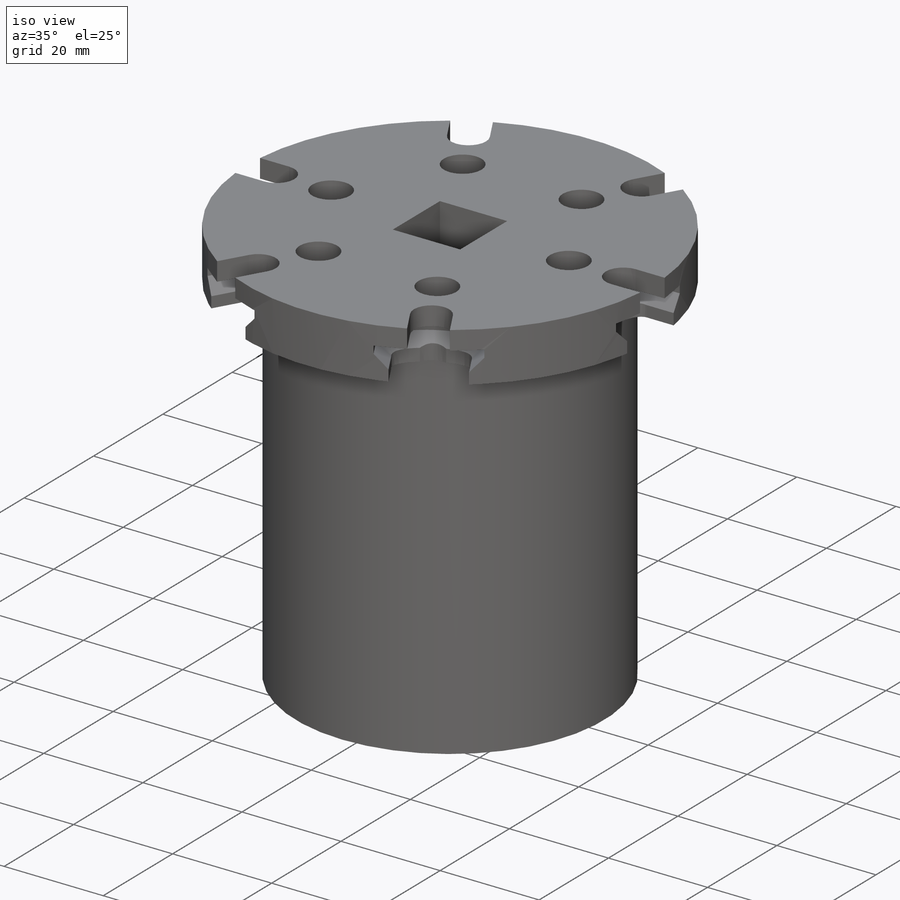
[diagram: iso view]
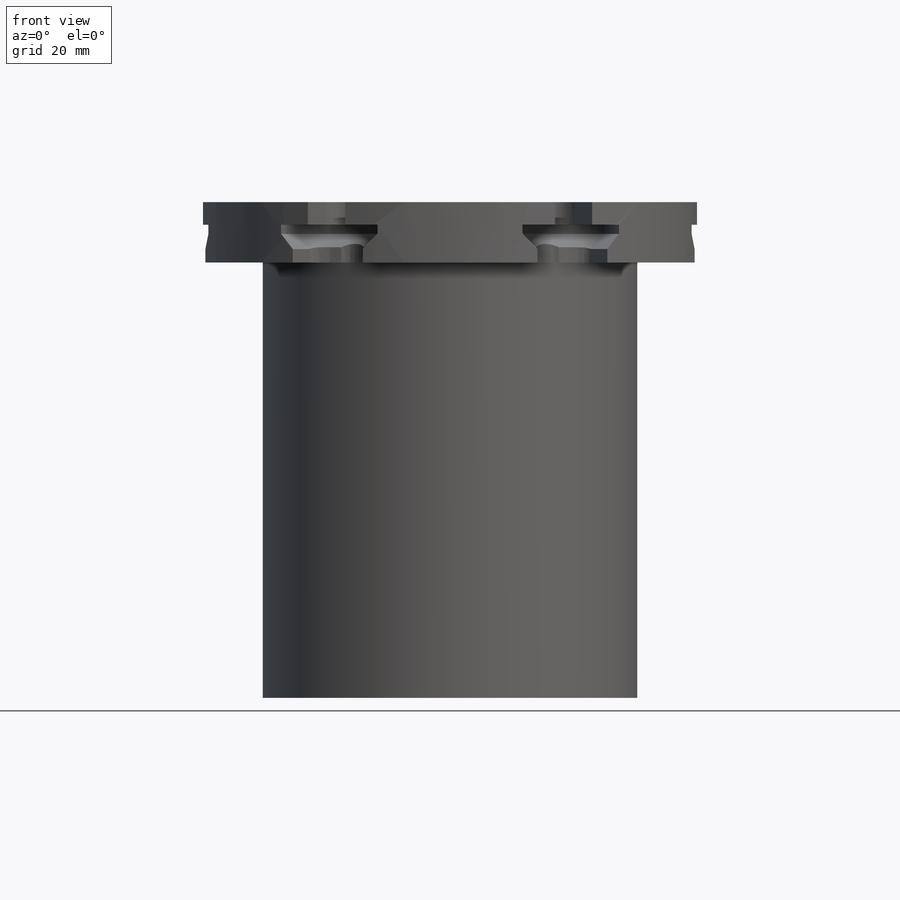
[diagram: front view]
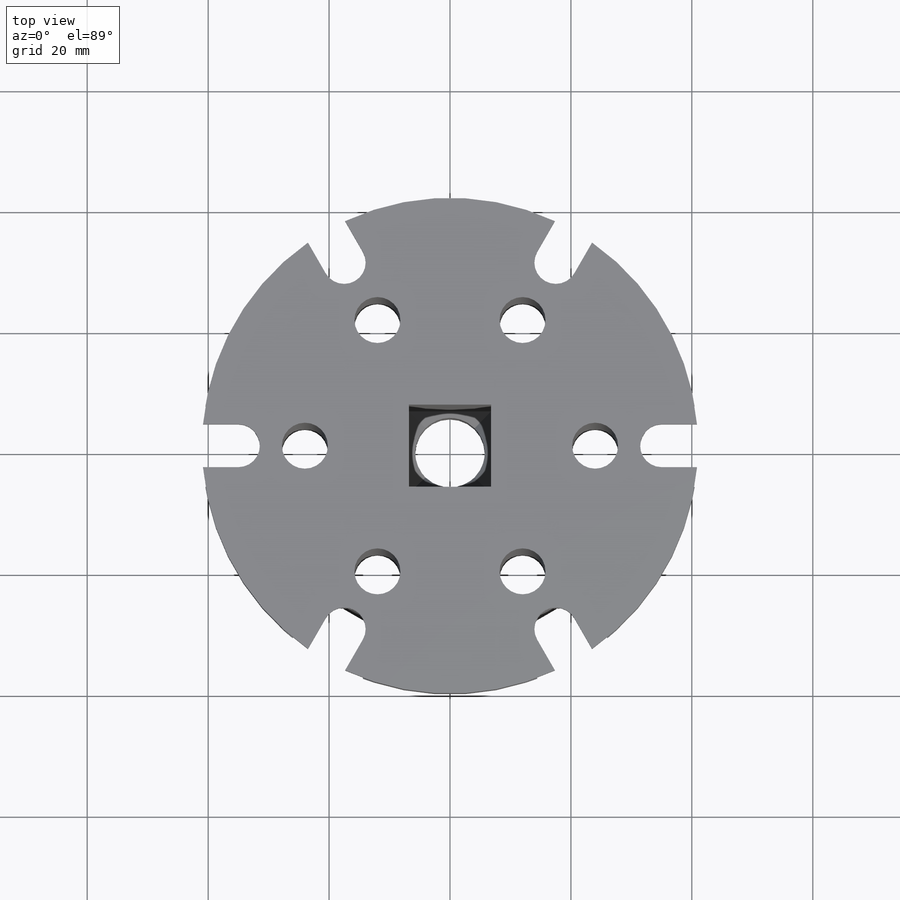
[diagram: top view]
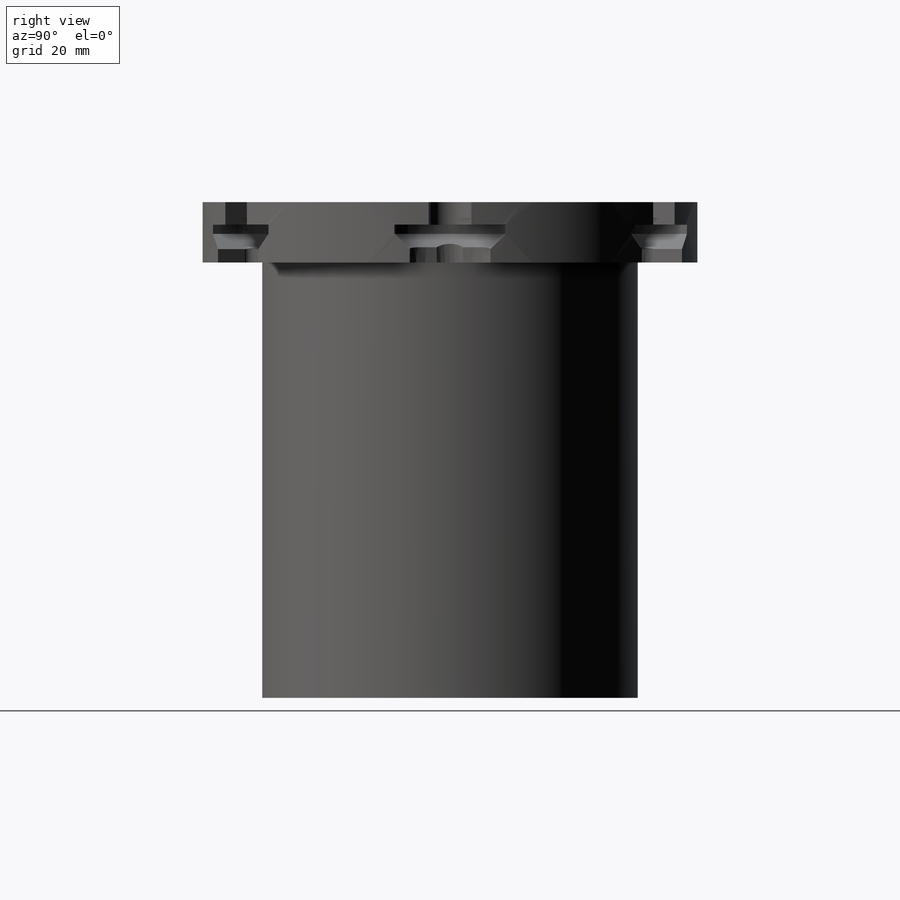
[diagram: right view]
SOLIDWORKS PART (.sldprt)
format: sldprt  version: not decoded by parser v0  size: 976,384 bytes
history: native  units: mm
features: sketch x17, cut_extrude x9, pattern_circular x5, extrude x3, sweep x2, material x1, plane x1, helix x1, chamfer x1, cut_revolve x1, fillet x1 (+12 scaffold rows collapsed)
feature tree (54):
  scaffold x12  (default folders/planes/origin — collapsed)
  material  "Material <not specified>"
  sketch  "Sketch1"  dims[D1=62.12mm D2=11.5mm]
  extrude  "Boss-Extrude1"  Depth=82mm
  sketch  "Sketch2"  dims[D1=82.0mm]
  extrude  "Boss-Extrude2"  Depth=10mm
  sketch  "Sketch3"  dims[D1=7.1mm D2=35.0mm D3=~1.937777mm]
  cut_extrude  "Cut-Extrude1"  Depth=10mm
  pattern_circular  "CirPattern1"  Count=63 Angle=60deg
  sketch  "Sketch5"  dims[c1.D3=82.0mm c1.D1=18.4mm c1.D2=10.4mm c2.D3=36.65mm c2.D4=~20.863192mm c3.D3=~4.965954mm]
  cut_extrude  "Cut-Extrude3"  Depth=1.5mm
  plane  "Plane1"  Offset=41mm
  sketch  "Sketch6"  dims[c1.D1=~3.561305mm c2.D1=~44.586876deg c3.D1=~3.01364mm c4.D1=45.0deg c4.D2=3.0mm c4.D3=3.75mm c5.D2=2.5mm c5.D3=~3.406367mm c6.D2=~2.537799mm]
  sketch  "Sketch7"  dims[D1=2.0mm]
  sweep  "Cut-Sweep9"
  sketch  "Sketch8"  dims[D1=0.0mm D2=0.0mm]
  cut_extrude  "Cut-Extrude4"  Depth=5mm
  pattern_circular  "CirPattern5"  Count=6 Angle=360deg
  sketch  "Sketch16"  dims[D3=7.1mm D1=0.0mm D2=0.0mm]
  cut_extrude  "Cut-Extrude10"  Depth=39mm
  pattern_circular  "CirPattern7"  Count=6 Angle=360deg
  sketch  "Sketch26"  dims[c1.D1=~54.284397mm c1.D3=~54.284397mm c2.D1=~14.306601mm c2.D2=~14.351957mm c3.D1=17.5mm c3.D2=17.5mm c3.D3=2.4mm]
  cut_extrude  "Cut-Extrude14"  Depth=70mm
  sketch  "Sketch27"  dims[c1.D1=~12.692397mm c1.D2=~11.20761mm c2.D1=13.6mm c2.D2=13.6mm]
  cut_extrude  "Cut-Extrude15"  Depth=70mm
  sketch  "Sketch18"  dims[c1.D1=~56.930665mm c1.D2=15.0mm c2.D1=2.4mm c2.D2=2.5mm]
  cut_extrude  "Cut-Extrude12"  Depth=13mm
  sketch  "Sketch19"
  helix  "Helix/Spiral1"  Pitch=12mm
  chamfer  "Chamfer2"  Distance=2.8mm Angle=50deg
  sketch  "Sketch20"  dims[c1.D1=1.0mm c1.D2=1.0mm c2.D2=~111.337071deg c3.D2=~1.797078mm c4.D2=60.0deg c4.D3=~0.972638mm c5.D3=120.0deg c6.D3=~0.878422mm c7.D3=30.0deg c7.D2=~0.874433mm c8.D2=29.0deg c8.D3=1.0mm]
  sweep  "Sweep2"
  pattern_circular  "CirPattern8"  Count=4 Angle=360deg
  sketch  "Sketch24"  dims[c1.D1=~6.222135mm c2.D1=45.0deg c2.D2=~10.757958mm]
  cut_revolve  "Cut-Revolve1"  Angle=360deg
  sketch  "Sketch25"  dims[D1=~25.984246mm]
  cut_extrude  "Cut-Extrude13"  Depth=10mm
  sketch  "Sketch28"  dims[c1.D1=~4.043912mm c1.D2=7.6mm c1.D3=~11.099327mm c2.D1=24.0mm c2.D3=2.0mm]
  extrude  "Boss-Extrude3"  [1 undecoded]
  sketch  "Sketch29"
  cut_extrude  "Cut-Extrude16"  Depth=15mm
  pattern_circular  "CirPattern9"  Count=6 Angle=360deg
  fillet  "Fillet1"  Radius=3mm
decode coverage: 35 of 40 modeling features carry decoded parameters
note: ~ marks probable driven/reference dimensions
note: 1 parameter value undecoded
note: suppression state not decoded; provenance and decode notes live in map.json
